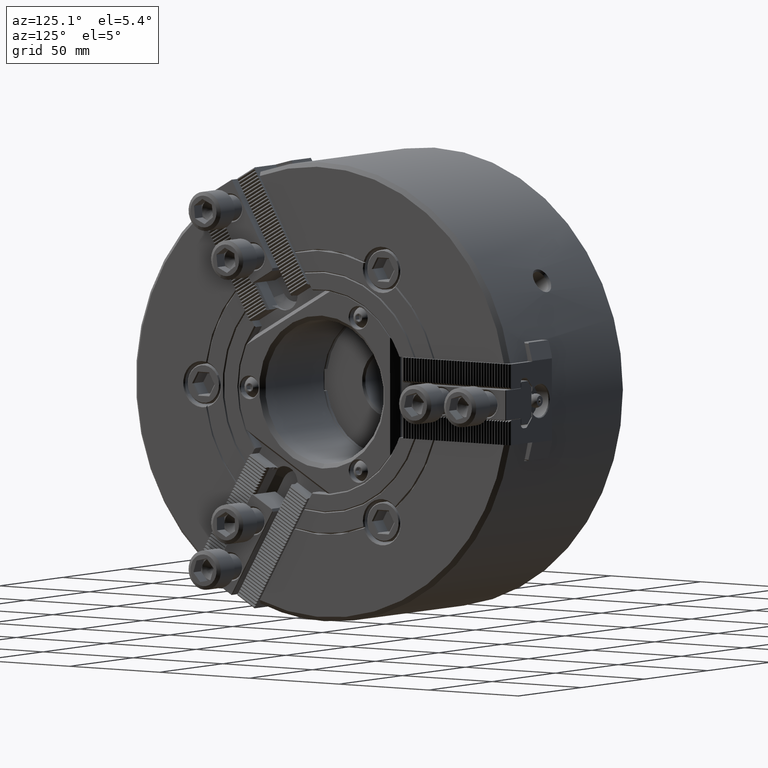
[diagram: clean part render]
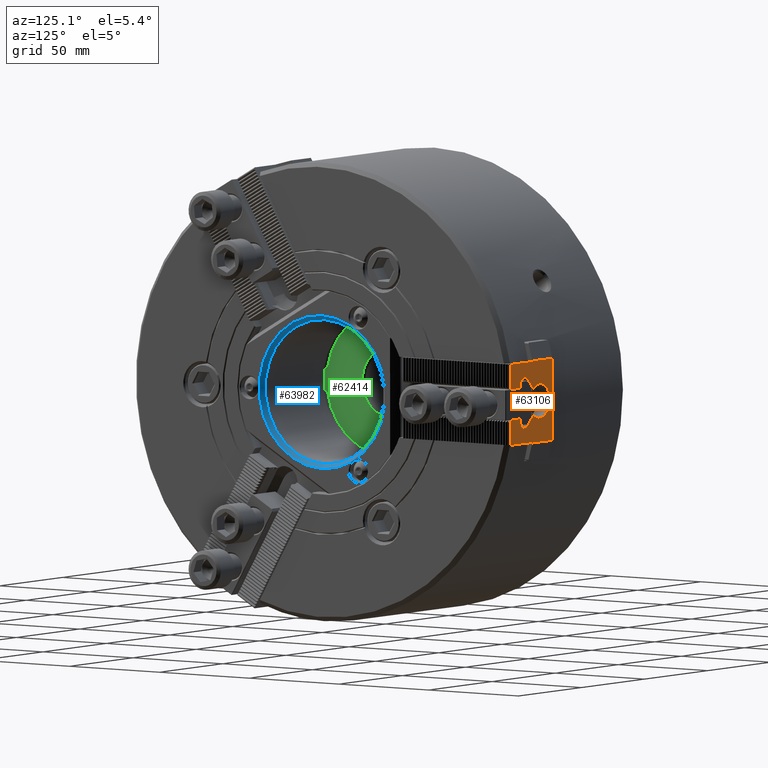
[diagram: same view with three faces highlighted in distinct colors, each labeled with its STEP entity id]
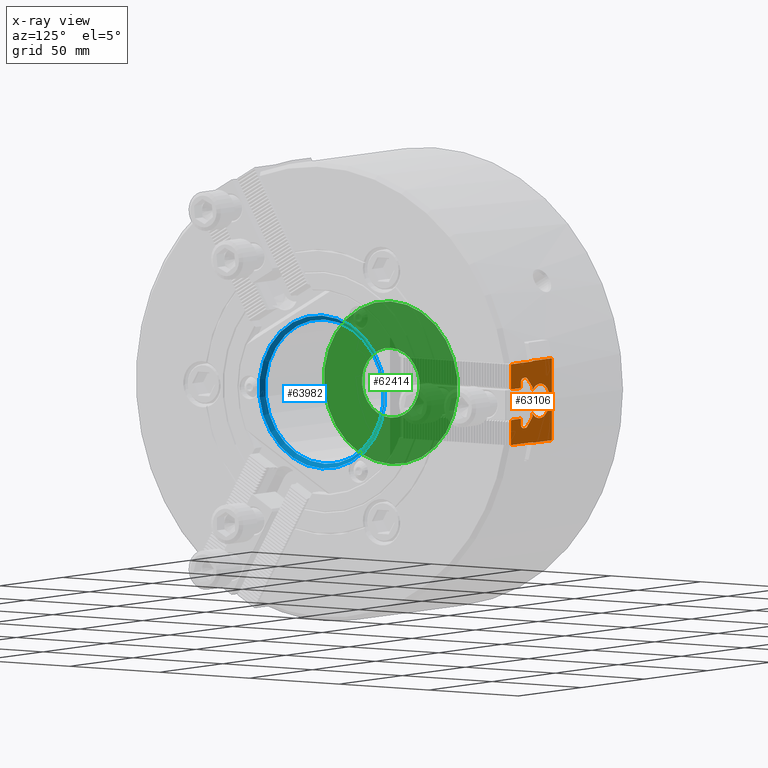
[diagram: x-ray of the same camera — body ghosted, the three highlighted faces saturated]
A machine part, auxiliary view with three faces highlighted in distinct colors.
The next image is the same camera in x-ray (body ghosted, the three faces saturated) — at least one of them is partly hidden behind the body in this view.
Their STEP definitions:

[orange] entity #63106 — the highlighted planar face has unit normal (0, 1, 0).
#193=LINE('',#81636,#4906);
#200=LINE('',#81653,#4913);
#899=LINE('',#84451,#5612);
#907=LINE('',#84478,#5620);
#917=LINE('',#84511,#5630);
#920=LINE('',#84522,#5633);
#1371=LINE('',#85581,#6084);
#1534=LINE('',#86503,#6247);
#1624=LINE('',#86655,#6337);
#1635=LINE('',#86686,#6348);
#1679=LINE('',#86828,#6392);
#1682=LINE('',#86835,#6395);
#1688=LINE('',#86861,#6401);
#1692=LINE('',#86874,#6405);
#1694=LINE('',#86877,#6407);
#1697=LINE('',#86897,#6410);
#1699=LINE('',#86903,#6412);
#1905=LINE('',#87282,#6618);
#1960=LINE('',#87499,#6673);
#1968=LINE('',#87514,#6681);
#1981=LINE('',#87548,#6694);
#4906=VECTOR('',#69115,1000.);
#4913=VECTOR('',#69126,1000.);
#5612=VECTOR('',#71461,1000.);
#5620=VECTOR('',#71473,1000.);
#5630=VECTOR('',#71493,1000.);
#5633=VECTOR('',#71498,1000.);
#6084=VECTOR('',#72179,1000.);
#6247=VECTOR('',#72624,1000.);
#6337=VECTOR('',#72730,1000.);
#6348=VECTOR('',#72757,1000.);
#6392=VECTOR('',#72975,1000.);
#6395=VECTOR('',#72984,1000.);
#6401=VECTOR('',#73004,1000.);
#6405=VECTOR('',#73010,1000.);
#6407=VECTOR('',#73012,1000.);
#6410=VECTOR('',#73033,1000.);
#6412=VECTOR('',#73041,1000.);
#6618=VECTOR('',#73407,1000.);
#6673=VECTOR('',#73534,1000.);
#6681=VECTOR('',#73548,1000.);
#6694=VECTOR('',#73585,1000.);
#11180=PLANE('',#66303);
#17171=ORIENTED_EDGE('',*,*,#25771,.T.);
#17172=ORIENTED_EDGE('',*,*,#27936,.F.);
#17173=ORIENTED_EDGE('',*,*,#27873,.T.);
#17174=ORIENTED_EDGE('',*,*,#28272,.T.);
#17175=ORIENTED_EDGE('',*,*,#25763,.F.);
#17176=ORIENTED_EDGE('',*,*,#28253,.F.);
#17177=ORIENTED_EDGE('',*,*,#28174,.T.);
#17178=ORIENTED_EDGE('',*,*,#28245,.F.);
#17179=ORIENTED_EDGE('',*,*,#27020,.F.);
#17180=ORIENTED_EDGE('',*,*,#27016,.T.);
#17181=ORIENTED_EDGE('',*,*,#27967,.T.);
#17182=ORIENTED_EDGE('',*,*,#27965,.T.);
#17183=ORIENTED_EDGE('',*,*,#27962,.T.);
#17184=ORIENTED_EDGE('',*,*,#27968,.T.);
#17185=ORIENTED_EDGE('',*,*,#27955,.T.);
#17186=ORIENTED_EDGE('',*,*,#27961,.F.);
#17187=ORIENTED_EDGE('',*,*,#27957,.F.);
#17188=ORIENTED_EDGE('',*,*,#27950,.F.);
#17189=ORIENTED_EDGE('',*,*,#27943,.F.);
#17190=ORIENTED_EDGE('',*,*,#27940,.F.);
#17191=ORIENTED_EDGE('',*,*,#27938,.F.);
#17192=ORIENTED_EDGE('',*,*,#27001,.F.);
#17193=ORIENTED_EDGE('',*,*,#26991,.T.);
#17194=ORIENTED_EDGE('',*,*,#27496,.T.);
#17195=ORIENTED_EDGE('',*,*,#27887,.F.);
#17196=ORIENTED_EDGE('',*,*,#27780,.T.);
#25763=EDGE_CURVE('',#32395,#32396,#193,.T.);
#25771=EDGE_CURVE('',#32404,#32403,#200,.T.);
#26991=EDGE_CURVE('',#33268,#33267,#899,.T.);
#27001=EDGE_CURVE('',#33268,#33277,#907,.T.);
#27016=EDGE_CURVE('',#33291,#33290,#917,.T.);
#27020=EDGE_CURVE('',#33291,#33294,#920,.T.);
#27496=EDGE_CURVE('',#33267,#33715,#1371,.T.);
#27780=EDGE_CURVE('',#33907,#32404,#1534,.T.);
#27873=EDGE_CURVE('',#33953,#33954,#1624,.T.);
#27887=EDGE_CURVE('',#33907,#33715,#1635,.T.);
#27936=EDGE_CURVE('',#33953,#32403,#1679,.T.);
#27938=EDGE_CURVE('',#33277,#33965,#37286,.T.);
#27940=EDGE_CURVE('',#33965,#33966,#1682,.T.);
#27943=EDGE_CURVE('',#33966,#33967,#37287,.T.);
#27950=EDGE_CURVE('',#33967,#33971,#1688,.T.);
#27955=EDGE_CURVE('',#33975,#33974,#1692,.T.);
#27957=EDGE_CURVE('',#33971,#33976,#1694,.T.);
#27961=EDGE_CURVE('',#33976,#33974,#37291,.T.);
#27962=EDGE_CURVE('',#33978,#33979,#37292,.T.);
#27965=EDGE_CURVE('',#33980,#33978,#1697,.T.);
#27967=EDGE_CURVE('',#33290,#33980,#37293,.T.);
#27968=EDGE_CURVE('',#33979,#33975,#1699,.T.);
#28174=EDGE_CURVE('',#34074,#34073,#1905,.T.);
#28245=EDGE_CURVE('',#33294,#34073,#1960,.T.);
#28253=EDGE_CURVE('',#34074,#32395,#1968,.T.);
#28272=EDGE_CURVE('',#33954,#32396,#1981,.T.);
#32395=VERTEX_POINT('',#81635);
#32396=VERTEX_POINT('',#81637);
#32403=VERTEX_POINT('',#81652);
#32404=VERTEX_POINT('',#81654);
#33267=VERTEX_POINT('',#84450);
#33268=VERTEX_POINT('',#84452);
#33277=VERTEX_POINT('',#84479);
#33290=VERTEX_POINT('',#84510);
#33291=VERTEX_POINT('',#84512);
#33294=VERTEX_POINT('',#84523);
#33715=VERTEX_POINT('',#85580);
#33907=VERTEX_POINT('',#86504);
#33953=VERTEX_POINT('',#86656);
#33954=VERTEX_POINT('',#86657);
#33965=VERTEX_POINT('',#86832);
#33966=VERTEX_POINT('',#86836);
#33967=VERTEX_POINT('',#86841);
#33971=VERTEX_POINT('',#86862);
#33974=VERTEX_POINT('',#86873);
#33975=VERTEX_POINT('',#86875);
#33976=VERTEX_POINT('',#86878);
#33978=VERTEX_POINT('',#86892);
#33979=VERTEX_POINT('',#86893);
#33980=VERTEX_POINT('',#86898);
#34073=VERTEX_POINT('',#87281);
#34074=VERTEX_POINT('',#87283);
#37286=CIRCLE('',#66150,2.);
#37287=CIRCLE('',#66153,2.);
#37291=CIRCLE('',#66165,7.9);
#37292=CIRCLE('',#66167,2.);
#37293=CIRCLE('',#66170,2.);
#39101=EDGE_LOOP('',(#17171,#17172,#17173,#17174,#17175,#17176,#17177,#17178,
#17179,#17180,#17181,#17182,#17183,#17184,#17185,#17186,#17187,#17188,#17189,
#17190,#17191,#17192,#17193,#17194,#17195,#17196));
#42157=FACE_BOUND('',#39101,.T.);
#63106=ADVANCED_FACE('',(#42157),#11180,.T.);
#66150=AXIS2_PLACEMENT_3D('',#86831,#72979,#72980);
#66153=AXIS2_PLACEMENT_3D('',#86840,#72989,#72990);
#66165=AXIS2_PLACEMENT_3D('',#86889,#73023,#73024);
#66167=AXIS2_PLACEMENT_3D('',#86891,#73027,#73028);
#66170=AXIS2_PLACEMENT_3D('',#86901,#73037,#73038);
#66303=AXIS2_PLACEMENT_3D('',#87549,#73586,#73587);
#69115=DIRECTION('',(1.14882349402437E-15,0.,1.));
#69126=DIRECTION('',(1.14882349402437E-15,0.,-1.));
#71461=DIRECTION('',(1.,0.,0.));
#71473=DIRECTION('',(0.,0.,-1.));
#71493=DIRECTION('',(0.,0.,1.));
#71498=DIRECTION('',(1.,0.,0.));
#72179=DIRECTION('',(0.866025403784454,0.,-0.499999999999973));
#72624=DIRECTION('',(-1.,0.,0.));
#72730=DIRECTION('',(0.,0.,1.));
#72757=DIRECTION('',(0.,0.,1.));
#72975=DIRECTION('',(1.,0.,0.));
#72979=DIRECTION('',(0.,1.,0.));
#72980=DIRECTION('',(0.,0.,-1.));
#72984=DIRECTION('',(-1.,0.,0.));
#72989=DIRECTION('',(0.,1.,0.));
#72990=DIRECTION('',(0.,0.,-1.));
#73004=DIRECTION('',(-0.70710678118655,0.,0.707106781186546));
#73010=DIRECTION('',(-2.47817639425258E-16,0.,-1.));
#73012=DIRECTION('',(-2.47817639425258E-16,0.,1.));
#73023=DIRECTION('',(-1.87426343526281E-16,1.,0.));
#73024=DIRECTION('',(-1.,-1.8742634352628E-16,0.));
#73027=DIRECTION('',(0.,-1.,0.));
#73028=DIRECTION('',(0.,0.,1.));
#73033=DIRECTION('',(-1.,0.,0.));
#73037=DIRECTION('',(0.,-1.,0.));
#73038=DIRECTION('',(0.,0.,1.));
#73041=DIRECTION('',(-0.70710678118655,0.,-0.707106781186546));
#73407=DIRECTION('',(0.,0.,-1.));
#73534=DIRECTION('',(0.866025403784454,0.,0.499999999999973));
#73548=DIRECTION('',(-1.,0.,0.));
#73585=DIRECTION('',(1.,0.,0.));
#73586=DIRECTION('',(0.,1.,0.));
#73587=DIRECTION('',(0.,0.,1.));
#81635=CARTESIAN_POINT('',(-16.,105.813162932873,18.4999999999995));
#81636=CARTESIAN_POINT('',(-16.,105.813162932873,18.4999999999995));
#81637=CARTESIAN_POINT('',(-16.,105.813162932873,18.7499999999995));
#81652=CARTESIAN_POINT('',(-16.,105.813162932873,-18.7500000000005));
#81653=CARTESIAN_POINT('',(-16.,105.813162932873,-18.5000000000005));
#81654=CARTESIAN_POINT('',(-16.,105.813162932873,-18.5000000000005));
#84450=CARTESIAN_POINT('',(0.26794919243103,105.813162932873,-7.00000000000049));
#84451=CARTESIAN_POINT('',(-2.99999999999993,105.813162932873,-7.00000000000049));
#84452=CARTESIAN_POINT('',(-6.99999999999993,105.813162932873,-7.00000000000049));
#84478=CARTESIAN_POINT('',(-6.99999999999993,105.813162932873,-9.50000000000049));
#84479=CARTESIAN_POINT('',(-6.99999999999993,105.813162932873,-9.50000000000049));
#84510=CARTESIAN_POINT('',(-6.99999999999993,105.813162932873,9.49999999999951));
#84511=CARTESIAN_POINT('',(-6.99999999999993,105.813162932873,9.49999999999951));
#84512=CARTESIAN_POINT('',(-6.99999999999993,105.813162932873,6.99999999999951));
#84522=CARTESIAN_POINT('',(-2.99999999999993,105.813162932873,6.99999999999951));
#84523=CARTESIAN_POINT('',(0.26794919243103,105.813162932873,6.99999999999951));
#85580=CARTESIAN_POINT('',(0.950000000000071,105.813162932873,-7.39378221735145));
#85581=CARTESIAN_POINT('',(2.,105.813162932873,-8.00000000000049));
#86503=CARTESIAN_POINT('',(-14.01,105.813162932873,-18.5000000000005));
#86504=CARTESIAN_POINT('',(0.950000000000071,105.813162932873,-18.5000000000005));
#86655=CARTESIAN_POINT('',(-31.6,105.813162932873,-27.0000000000005));
#86656=CARTESIAN_POINT('',(-31.6,105.813162932873,-18.7500000000005));
#86657=CARTESIAN_POINT('',(-31.6,105.813162932873,18.7499999999995));
#86686=CARTESIAN_POINT('',(0.950000000000071,105.813162932873,-19.1014977490096));
#86828=CARTESIAN_POINT('',(-59.,105.813162932873,-18.7500000000005));
#86831=CARTESIAN_POINT('',(-8.99999999999993,105.813162932873,-9.50000000000049));
#86832=CARTESIAN_POINT('',(-8.99999999999994,105.813162932873,-11.5000000000005));
#86835=CARTESIAN_POINT('',(-10.6715728752537,105.813162932873,-11.5000000000005));
#86836=CARTESIAN_POINT('',(-10.6715728752537,105.813162932873,-11.5000000000005));
#86840=CARTESIAN_POINT('',(-10.6715728752537,105.813162932873,-9.50000000000049));
#86841=CARTESIAN_POINT('',(-12.0857864376268,105.813162932873,-10.9142135623736));
#86861=CARTESIAN_POINT('',(-16.,105.813162932873,-7.00000000000049));
#86862=CARTESIAN_POINT('',(-16.,105.813162932873,-7.00000000000049));
#86873=CARTESIAN_POINT('',(-16.,105.813162932873,5.13906606301134));
#86874=CARTESIAN_POINT('',(-16.,105.813162932873,-4.90763587809981E-13));
#86875=CARTESIAN_POINT('',(-16.,105.813162932873,6.99999999999951));
#86877=CARTESIAN_POINT('',(-16.,105.813162932873,-4.90763587809981E-13));
#86878=CARTESIAN_POINT('',(-16.,105.813162932873,-5.13906606301232));
#86889=CARTESIAN_POINT('',(-22.,105.813162932873,-4.90763587809981E-13));
#86891=CARTESIAN_POINT('',(-10.6715728752537,105.813162932873,9.49999999999951));
#86892=CARTESIAN_POINT('',(-10.6715728752537,105.813162932873,11.4999999999995));
#86893=CARTESIAN_POINT('',(-12.0857864376268,105.813162932873,10.9142135623726));
#86897=CARTESIAN_POINT('',(-10.6715728752537,105.813162932873,11.4999999999995));
#86898=CARTESIAN_POINT('',(-8.99999999999994,105.813162932873,11.4999999999995));
#86901=CARTESIAN_POINT('',(-8.99999999999993,105.813162932873,9.49999999999951));
#86903=CARTESIAN_POINT('',(-16.,105.813162932873,6.99999999999951));
#87281=CARTESIAN_POINT('',(0.950000000000071,105.813162932873,7.39378221735047));
#87282=CARTESIAN_POINT('',(0.950000000000071,105.813162932873,19.1014977490086));
#87283=CARTESIAN_POINT('',(0.950000000000071,105.813162932873,18.4999999999995));
#87499=CARTESIAN_POINT('',(2.,105.813162932873,7.99999999999951));
#87514=CARTESIAN_POINT('',(-14.01,105.813162932873,18.4999999999995));
#87548=CARTESIAN_POINT('',(-59.,105.813162932873,18.7499999999995));
#87549=CARTESIAN_POINT('',(-15.2002070823814,105.813162932873,-19.1014977490096));

[blue] entity #63982 — the highlighted conical surface has half-angle 45 deg.
#10415=CONICAL_SURFACE('',#67384,33.,0.785398163397455);
#22237=ORIENTED_EDGE('',*,*,#30885,.F.);
#22238=ORIENTED_EDGE('',*,*,#30881,.T.);
#30881=EDGE_CURVE('',#35842,#35842,#37477,.T.);
#30885=EDGE_CURVE('',#35844,#35844,#37479,.T.);
#35842=VERTEX_POINT('',#93848);
#35844=VERTEX_POINT('',#93855);
#37477=CIRCLE('',#67380,35.);
#37479=CIRCLE('',#67383,33.);
#40029=EDGE_LOOP('',(#22237));
#40030=EDGE_LOOP('',(#22238));
#43099=FACE_BOUND('',#40029,.T.);
#43100=FACE_BOUND('',#40030,.T.);
#63982=ADVANCED_FACE('',(#43099,#43100),#10415,.F.);
#67380=AXIS2_PLACEMENT_3D('',#93847,#77934,#77935);
#67383=AXIS2_PLACEMENT_3D('',#93854,#77942,#77943);
#67384=AXIS2_PLACEMENT_3D('',#93856,#77944,#77945);
#77934=DIRECTION('',(1.,-4.01685946472933E-17,5.31127384599706E-17));
#77935=DIRECTION('',(5.3145021955673E-17,0.000804127400808657,-0.999999676689509));
#77942=DIRECTION('',(1.,-4.01685946472933E-17,5.31127384599706E-17));
#77943=DIRECTION('',(5.3145021955673E-17,0.000804127400808657,-0.999999676689509));
#77944=DIRECTION('',(1.,-4.01685946472933E-17,5.31127384599706E-17));
#77945=DIRECTION('',(5.3145021955673E-17,0.000804127400808657,-0.999999676689509));
#93847=CARTESIAN_POINT('',(1.7347234759768E-15,-6.96814041316557E-32,9.21359142799269E-32));
#93848=CARTESIAN_POINT('',(3.59479924442536E-15,0.028144459028303,-34.9999886841328));
#93854=CARTESIAN_POINT('',(-2.00000000000007,8.03371892945894E-17,-1.06225476919945E-16));
#93855=CARTESIAN_POINT('',(-2.00000000000007,0.0265362042266858,-32.9999893307538));
#93856=CARTESIAN_POINT('',(-2.00000000000007,8.03371892945894E-17,-1.06225476919945E-16));

[green] entity #62414 — the highlighted planar face has unit normal (1, 0, 0).
#10684=PLANE('',#65238);
#13173=ORIENTED_EDGE('',*,*,#26192,.F.);
#13174=ORIENTED_EDGE('',*,*,#26193,.T.);
#26192=EDGE_CURVE('',#32763,#32763,#36994,.T.);
#26193=EDGE_CURVE('',#32764,#32764,#36995,.T.);
#32763=VERTEX_POINT('',#82585);
#32764=VERTEX_POINT('',#82587);
#36994=CIRCLE('',#65239,16.);
#36995=CIRCLE('',#65240,37.25);
#38331=EDGE_LOOP('',(#13173));
#38332=EDGE_LOOP('',(#13174));
#41379=FACE_BOUND('',#38331,.T.);
#41380=FACE_BOUND('',#38332,.T.);
#62414=ADVANCED_FACE('',(#41379,#41380),#10684,.T.);
#65238=AXIS2_PLACEMENT_3D('',#82583,#69944,#69945);
#65239=AXIS2_PLACEMENT_3D('',#82584,#69946,#69947);
#65240=AXIS2_PLACEMENT_3D('',#82586,#69948,#69949);
#69944=DIRECTION('',(1.,0.,0.));
#69945=DIRECTION('',(0.,0.,-1.));
#69946=DIRECTION('',(1.,0.,0.));
#69947=DIRECTION('',(0.,0.,-1.));
#69948=DIRECTION('',(1.,0.,0.));
#69949=DIRECTION('',(0.,0.,-1.));
#82583=CARTESIAN_POINT('',(-54.5,-5.58637337777499E-14,-16.));
#82584=CARTESIAN_POINT('',(-54.5,0.,0.));
#82585=CARTESIAN_POINT('',(-54.5,0.,-16.));
#82586=CARTESIAN_POINT('',(-54.5,0.,0.));
#82587=CARTESIAN_POINT('',(-54.5,0.,-37.25));